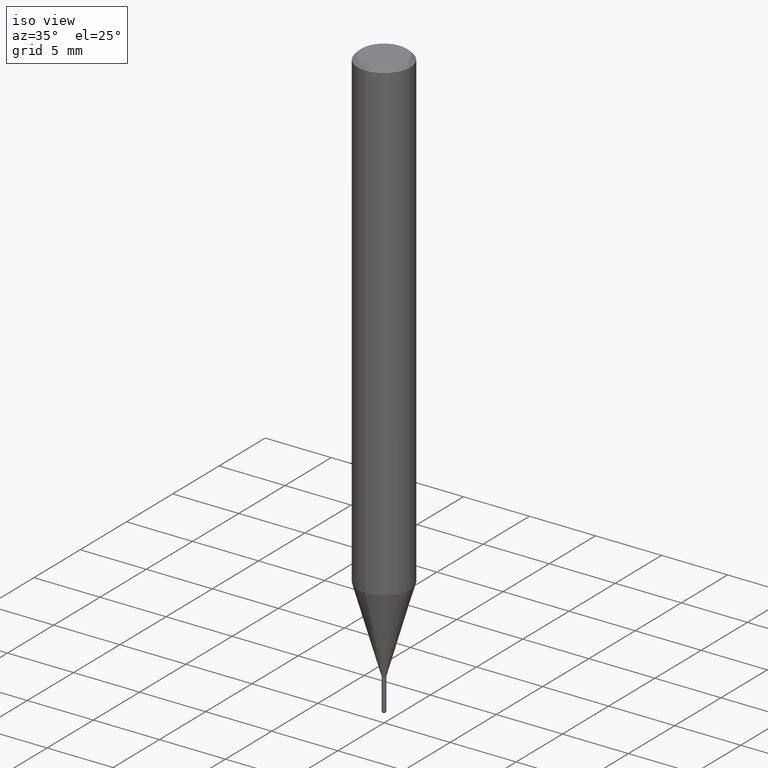
[diagram: clean part render]
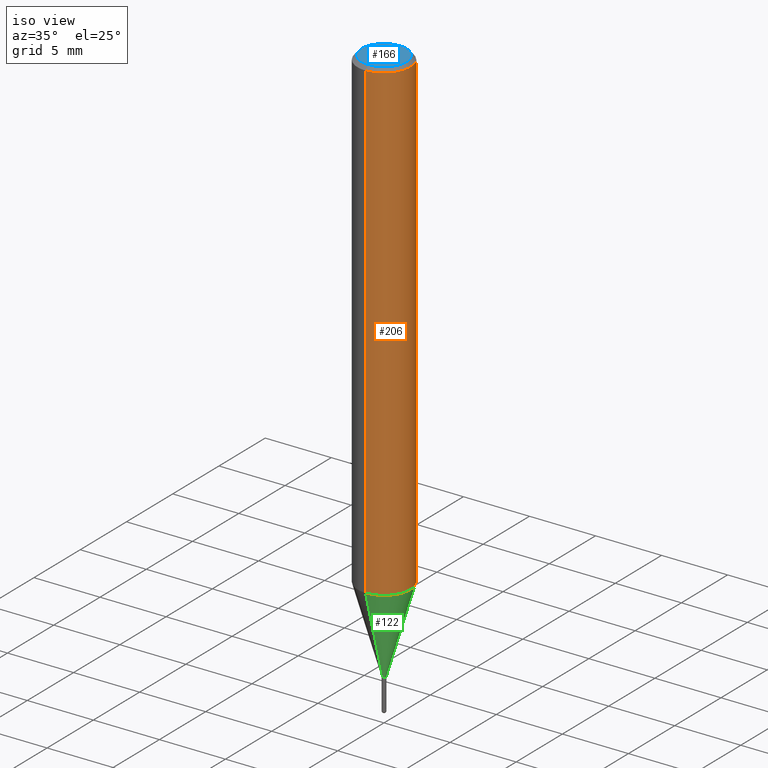
[diagram: same view with three faces highlighted in distinct colors, each labeled with its STEP entity id]
A machine part, iso view with three faces highlighted in distinct colors.
Their STEP definitions:

[orange] entity #206 — the highlighted cylindrical surface (edge-blend (fillet) strip) has radius 2 mm, axis along (-0, -0, 1).
#94=EDGE_CURVE('',#128,#178,#235,.T.);
#100=EDGE_CURVE('',#128,#112,#241,.T.);
#112=VERTEX_POINT('',#254);
#128=VERTEX_POINT('',#273);
#150=EDGE_CURVE('',#212,#112,#299,.T.);
#172=EDGE_CURVE('',#178,#212,#323,.T.);
#178=VERTEX_POINT('',#329);
#206=ADVANCED_FACE('',(#362),#363,.T.);
#212=VERTEX_POINT('',#370);
#235=LINE('',#386,#387);
#241=CIRCLE('',#396,2.0);
#254=CARTESIAN_POINT('',(2.44921270764475E-016,-2.0,-0.299999999999997));
#273=CARTESIAN_POINT('',(0.0,2.0,-0.299999999999997));
#299=LINE('',#468,#469);
#323=CIRCLE('',#500,2.0);
#329=CARTESIAN_POINT('',(0.0,2.0,-36.031));
#362=FACE_OUTER_BOUND('',#545,.T.);
#363=CYLINDRICAL_SURFACE('',#546,2.0);
#370=CARTESIAN_POINT('',(2.44921270764475E-016,-2.0,-36.031));
#386=CARTESIAN_POINT('',(-2.44921270764475E-016,2.0,-18.1655));
#387=VECTOR('',#559,1.0);
#396=AXIS2_PLACEMENT_3D('',#566,#567,#568);
#468=CARTESIAN_POINT('',(2.44921270764475E-016,-2.0,-18.1655));
#469=VECTOR('',#648,1.0);
#500=AXIS2_PLACEMENT_3D('',#675,#676,#677);
#545=EDGE_LOOP('',(#724,#725,#726,#727));
#546=AXIS2_PLACEMENT_3D('',#728,#729,#730);
#559=DIRECTION('',(0.0,0.0,-1.0));
#566=CARTESIAN_POINT('',(0.0,0.0,-0.299999999999997));
#567=DIRECTION('',(0.0,0.0,-1.0));
#568=DIRECTION('',(0.0,1.0,0.0));
#648=DIRECTION('',(-0.0,-0.0,1.0));
#675=CARTESIAN_POINT('',(0.0,0.0,-36.031));
#676=DIRECTION('',(0.0,0.0,-1.0));
#677=DIRECTION('',(0.0,1.0,0.0));
#724=ORIENTED_EDGE('',*,*,#94,.F.);
#725=ORIENTED_EDGE('',*,*,#100,.T.);
#726=ORIENTED_EDGE('',*,*,#150,.F.);
#727=ORIENTED_EDGE('',*,*,#172,.F.);
#728=CARTESIAN_POINT('',(0.0,0.0,-18.1655));
#729=DIRECTION('',(-0.0,-0.0,1.0));
#730=DIRECTION('',(0.0,1.0,0.0));

[blue] entity #166 — the highlighted planar face has unit normal (-0, 0, 1).
#126=EDGE_CURVE('',#192,#188,#271,.T.);
#156=EDGE_CURVE('',#188,#192,#305,.T.);
#166=ADVANCED_FACE('',(#315),#316,.T.);
#188=VERTEX_POINT('',#342);
#192=VERTEX_POINT('',#347);
#271=CIRCLE('',#436,1.7);
#305=CIRCLE('',#477,1.7);
#315=FACE_OUTER_BOUND('',#489,.T.);
#316=PLANE('',#490);
#342=CARTESIAN_POINT('',(0.0,1.7,0.0));
#347=CARTESIAN_POINT('',(2.08183080149804E-016,-1.7,0.0));
#436=AXIS2_PLACEMENT_3D('',#606,#607,#608);
#477=AXIS2_PLACEMENT_3D('',#652,#653,#654);
#489=EDGE_LOOP('',(#661,#662));
#490=AXIS2_PLACEMENT_3D('',#663,#664,#665);
#606=CARTESIAN_POINT('',(0.0,0.0,0.0));
#607=DIRECTION('',(0.0,0.0,-1.0));
#608=DIRECTION('',(0.0,1.0,0.0));
#652=CARTESIAN_POINT('',(0.0,0.0,0.0));
#653=DIRECTION('',(0.0,0.0,-1.0));
#654=DIRECTION('',(0.0,1.0,0.0));
#661=ORIENTED_EDGE('',*,*,#156,.F.);
#662=ORIENTED_EDGE('',*,*,#126,.F.);
#663=CARTESIAN_POINT('',(0.0,0.85,0.0));
#664=DIRECTION('',(-0.0,0.0,1.0));
#665=DIRECTION('',(0.0,-1.0,0.0));

[green] entity #122 — the highlighted conical surface has half-angle 16 deg.
#102=EDGE_CURVE('',#154,#136,#243,.T.);
#104=VERTEX_POINT('',#245);
#118=EDGE_CURVE('',#104,#158,#261,.T.);
#122=ADVANCED_FACE('',(#265),#266,.T.);
#136=VERTEX_POINT('',#283);
#140=EDGE_CURVE('',#104,#136,#288,.T.);
#152=EDGE_CURVE('',#158,#154,#301,.T.);
#154=VERTEX_POINT('',#303);
#158=VERTEX_POINT('',#307);
#243=LINE('',#399,#400);
#245=CARTESIAN_POINT('',(0.0,1.99995,-36.031));
#261=LINE('',#422,#423);
#265=FACE_OUTER_BOUND('',#429,.T.);
#266=CONICAL_SURFACE('',#430,1.07245,0.279258979430112);
#283=CARTESIAN_POINT('',(2.44915147732706E-016,-1.99995,-36.031));
#288=CIRCLE('',#454,1.99995);
#301=CIRCLE('',#472,0.14495);
#303=CARTESIAN_POINT('',(1.77506690986554E-017,-0.14495,-42.5));
#307=CARTESIAN_POINT('',(0.0,0.14495,-42.5));
#399=CARTESIAN_POINT('',(1.31332908415681E-016,-1.07245,-39.2655));
#400=VECTOR('',#569,1.0);
#422=CARTESIAN_POINT('',(-1.31332908415681E-016,1.07245,-39.2655));
#423=VECTOR('',#588,1.0);
#429=EDGE_LOOP('',(#591,#592,#593,#594));
#430=AXIS2_PLACEMENT_3D('',#595,#596,#597);
#454=AXIS2_PLACEMENT_3D('',#631,#632,#633);
#472=AXIS2_PLACEMENT_3D('',#649,#650,#651);
#569=DIRECTION('',(3.37554672384358E-017,-0.275643410905672,0.961259959648943));
#588=DIRECTION('',(3.37554672384358E-017,-0.275643410905672,-0.961259959648943));
#591=ORIENTED_EDGE('',*,*,#118,.F.);
#592=ORIENTED_EDGE('',*,*,#140,.T.);
#593=ORIENTED_EDGE('',*,*,#102,.F.);
#594=ORIENTED_EDGE('',*,*,#152,.F.);
#595=CARTESIAN_POINT('',(0.0,0.0,-39.2655));
#596=DIRECTION('',(-0.0,-0.0,1.0));
#597=DIRECTION('',(0.0,1.0,0.0));
#631=CARTESIAN_POINT('',(0.0,0.0,-36.031));
#632=DIRECTION('',(0.0,0.0,-1.0));
#633=DIRECTION('',(0.0,1.0,0.0));
#649=CARTESIAN_POINT('',(0.0,0.0,-42.5));
#650=DIRECTION('',(0.0,0.0,-1.0));
#651=DIRECTION('',(0.0,1.0,0.0));